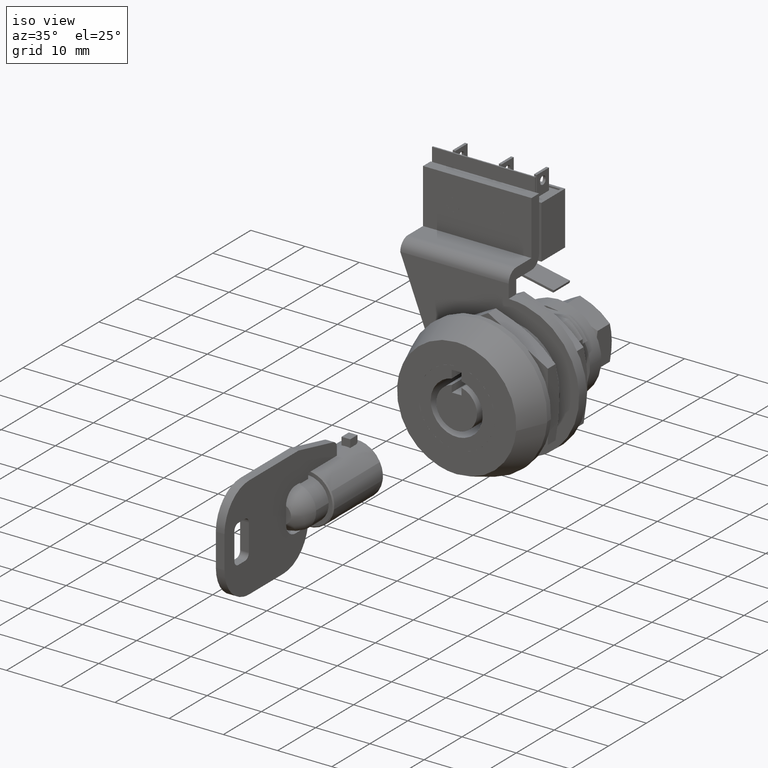
[diagram: clean part render]
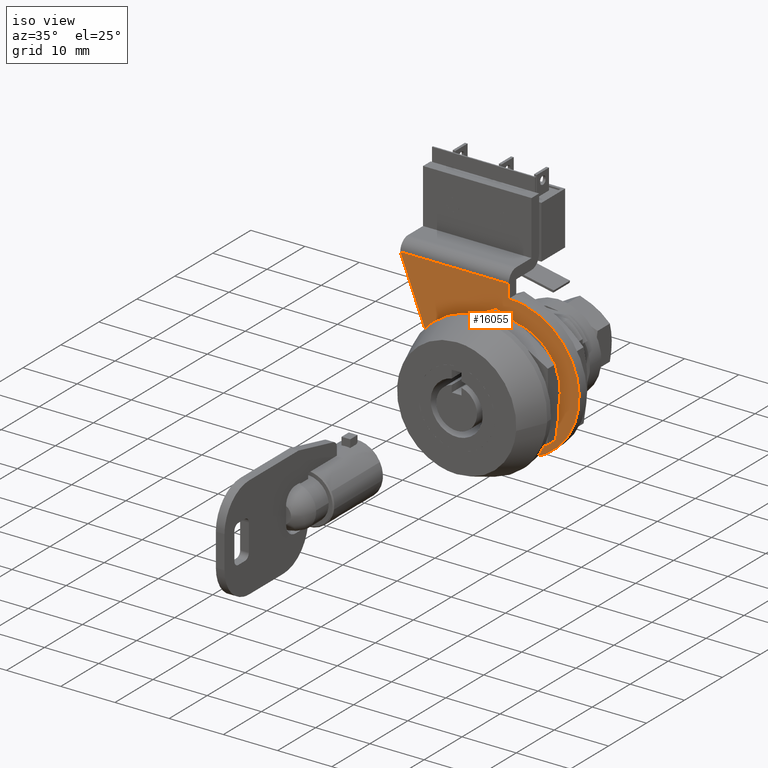
[diagram: same view with one face highlighted and labeled with its STEP entity id]
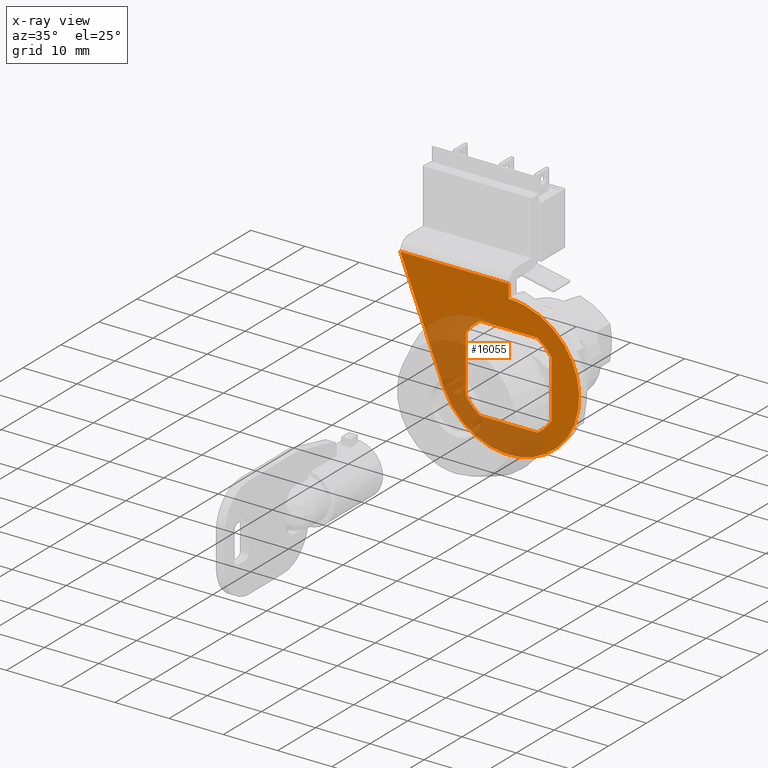
[diagram: x-ray of the same camera — body ghosted, the highlighted face saturated]
A machine part, iso view. The second image highlights one B-rep face of the part: STEP entity #16055.
The next image is the same camera in x-ray: the body ghosted, the highlighted face saturated — about 36% of this face is hidden behind the body in this view.
In plain terms, the highlighted face is a freeform B-spline surface patch.
Its self-contained STEP definition (entity closure, byte-faithful):
#15279=CARTESIAN_POINT('',(13.699997000000240,20.0,15.500000000000000));
#15280=VERTEX_POINT('',#15279);
#15296=CARTESIAN_POINT('',(13.699997000000200,0.0,15.500000000000000));
#15297=VERTEX_POINT('',#15296);
#15298=CARTESIAN_POINT('',(13.699997000000200,0.0,15.500000000000000));
#15299=CARTESIAN_POINT('',(13.699997000000240,20.0,15.500000000000000));
#15300=QUASI_UNIFORM_CURVE('',1,(#15298,#15299),.UNSPECIFIED.,.F.,.U.);
#15301=EDGE_CURVE('',#15297,#15280,#15300,.T.);
#15405=CARTESIAN_POINT('',(13.699997000000240,-5.276367000000000,7.899992999999999));
#15406=VERTEX_POINT('',#15405);
#15427=CARTESIAN_POINT('',(13.699997000000240,-7.899994000000000,5.276371366759939));
#15428=VERTEX_POINT('',#15427);
#15434=CARTESIAN_POINT('',(13.699997000000240,-5.276367000000000,7.899992999999999));
#15435=CARTESIAN_POINT('',(13.699997000000243,-6.849383260797652,6.849385028749488));
#15436=CARTESIAN_POINT('',(13.699997000000240,-7.899994000000000,5.276371366759939));
#15444=(BOUNDED_CURVE()B_SPLINE_CURVE(2,(#15434,#15435,#15436),.UNSPECIFIED.,.F.,.U.)CURVE()GEOMETRIC_REPRESENTATION_ITEM()QUASI_UNIFORM_CURVE()RATIONAL_B_SPLINE_CURVE((1.0,0.980747052830885,1.0))REPRESENTATION_ITEM(''));
#15445=EDGE_CURVE('',#15406,#15428,#15444,.T.);
#15457=CARTESIAN_POINT('',(13.699997000000240,5.276372863999580,7.899992999999999));
#15458=VERTEX_POINT('',#15457);
#15470=CARTESIAN_POINT('',(13.699997000000240,5.276372863999580,7.899992999999999));
#15471=CARTESIAN_POINT('',(13.699997000000240,-5.276367000000000,7.899992999999999));
#15472=QUASI_UNIFORM_CURVE('',1,(#15470,#15471),.UNSPECIFIED.,.F.,.U.);
#15473=EDGE_CURVE('',#15458,#15406,#15472,.T.);
#15494=CARTESIAN_POINT('',(13.699997000000240,7.899993999999911,5.276371366760060));
#15495=VERTEX_POINT('',#15494);
#15515=CARTESIAN_POINT('',(13.699997000000240,7.899993999999909,5.276371366760061));
#15516=CARTESIAN_POINT('',(13.699997000000243,6.849385573130592,6.849384275006776));
#15517=CARTESIAN_POINT('',(13.699997000000240,5.276372863999575,7.899992999999996));
#15525=(BOUNDED_CURVE()B_SPLINE_CURVE(2,(#15515,#15516,#15517),.UNSPECIFIED.,.F.,.U.)CURVE()GEOMETRIC_REPRESENTATION_ITEM()QUASI_UNIFORM_CURVE()RATIONAL_B_SPLINE_CURVE((1.0,0.980747102950351,1.0))REPRESENTATION_ITEM(''));
#15526=EDGE_CURVE('',#15495,#15458,#15525,.T.);
#15538=CARTESIAN_POINT('',(13.699997000000240,7.899999967652269,-5.276362431741590));
#15539=VERTEX_POINT('',#15538);
#15551=CARTESIAN_POINT('',(13.699997000000240,7.899999967652269,-5.276362431741590));
#15552=CARTESIAN_POINT('',(13.699997000000240,7.899993999999911,5.276371366760060));
#15553=QUASI_UNIFORM_CURVE('',1,(#15551,#15552),.UNSPECIFIED.,.F.,.U.);
#15554=EDGE_CURVE('',#15539,#15495,#15553,.T.);
#15575=CARTESIAN_POINT('',(13.699997000000240,5.276347410842080,-7.900010000000001));
#15576=VERTEX_POINT('',#15575);
#15596=CARTESIAN_POINT('',(13.699997000000240,5.276347410842082,-7.900010000000003));
#15597=CARTESIAN_POINT('',(13.699997000000241,6.849381380752912,-6.849394404031687));
#15598=CARTESIAN_POINT('',(13.699997000000240,7.899999967652274,-5.276362431741593));
#15606=(BOUNDED_CURVE()B_SPLINE_CURVE(2,(#15596,#15597,#15598),.UNSPECIFIED.,.F.,.U.)CURVE()GEOMETRIC_REPRESENTATION_ITEM()QUASI_UNIFORM_CURVE()RATIONAL_B_SPLINE_CURVE((1.0,0.980746677922912,1.0))REPRESENTATION_ITEM(''));
#15607=EDGE_CURVE('',#15576,#15539,#15606,.T.);
#15619=CARTESIAN_POINT('',(13.699997000000240,-5.276347410842080,-7.900010000000001));
#15620=VERTEX_POINT('',#15619);
#15632=CARTESIAN_POINT('',(13.699997000000240,-5.276347410842080,-7.900010000000001));
#15633=CARTESIAN_POINT('',(13.699997000000240,5.276347410842080,-7.900010000000001));
#15634=QUASI_UNIFORM_CURVE('',1,(#15632,#15633),.UNSPECIFIED.,.F.,.U.);
#15635=EDGE_CURVE('',#15620,#15576,#15634,.T.);
#15656=CARTESIAN_POINT('',(13.699997000000240,-7.899994000000000,-5.276371366759930));
#15657=VERTEX_POINT('',#15656);
#15677=CARTESIAN_POINT('',(13.699997000000240,-7.899993999999999,-5.276371366759928));
#15678=CARTESIAN_POINT('',(13.699997000000240,-6.849376736108962,-6.849397506148660));
#15679=CARTESIAN_POINT('',(13.699997000000240,-5.276347410842081,-7.900010000000004));
#15687=(BOUNDED_CURVE()B_SPLINE_CURVE(2,(#15677,#15678,#15679),.UNSPECIFIED.,.F.,.U.)CURVE()GEOMETRIC_REPRESENTATION_ITEM()QUASI_UNIFORM_CURVE()RATIONAL_B_SPLINE_CURVE((1.0,0.980746788357526,1.0))REPRESENTATION_ITEM(''));
#15688=EDGE_CURVE('',#15657,#15620,#15687,.T.);
#15705=CARTESIAN_POINT('',(13.699997000000240,-7.899994000000000,5.276371366759939));
#15706=CARTESIAN_POINT('',(13.699997000000240,-7.899994000000000,-5.276371366759930));
#15707=QUASI_UNIFORM_CURVE('',1,(#15705,#15706),.UNSPECIFIED.,.F.,.U.);
#15708=EDGE_CURVE('',#15428,#15657,#15707,.T.);
#15865=CARTESIAN_POINT('',(13.699997000000240,-7.959941E-016,13.0));
#15866=VERTEX_POINT('',#15865);
#15867=CARTESIAN_POINT('',(13.699997000000240,-7.959941E-016,13.0));
#15868=CARTESIAN_POINT('',(13.699997000000200,0.0,15.500000000000000));
#15869=QUASI_UNIFORM_CURVE('',1,(#15867,#15868),.UNSPECIFIED.,.F.,.U.);
#15870=EDGE_CURVE('',#15866,#15297,#15869,.T.);
#15929=CARTESIAN_POINT('',(13.699997000000240,12.111239530242280,-4.724180039022300));
#15930=VERTEX_POINT('',#15929);
#15931=CARTESIAN_POINT('',(13.699997000000240,12.111239530242280,-4.724180039022301));
#15932=CARTESIAN_POINT('',(13.699997000000236,7.939203469413592,-15.419904512715707));
#15933=CARTESIAN_POINT('',(13.699997000000240,-3.190323775625334,-12.602453499484920));
#15934=CARTESIAN_POINT('',(13.699997000000236,-14.319851020664245,-9.785002486254140));
#15935=CARTESIAN_POINT('',(13.699997000000240,-12.900230530756110,1.607498756872923));
#15936=CARTESIAN_POINT('',(13.699997000000236,-11.480610040847958,13.0));
#15937=CARTESIAN_POINT('',(13.699997000000240,0.0,13.0));
#15945=(BOUNDED_CURVE()B_SPLINE_CURVE(2,(#15931,#15932,#15933,#15934,#15935,#15936,#15937),.UNSPECIFIED.,.F.,.U.)B_SPLINE_CURVE_WITH_KNOTS((3,2,2,3),(0.0,0.333333333333333,0.666666666666667,1.0),.UNSPECIFIED.)CURVE()GEOMETRIC_REPRESENTATION_ITEM()RATIONAL_B_SPLINE_CURVE((1.0,0.749551115844906,1.0,0.749551115844906,1.0,0.749551115844906,1.0))REPRESENTATION_ITEM(''));
#15946=EDGE_CURVE('',#15930,#15866,#15945,.T.);
#15967=CARTESIAN_POINT('',(13.699997000000240,20.0,15.500000000000000));
#15968=CARTESIAN_POINT('',(13.699997000000240,12.111239530242280,-4.724180039022300));
#15969=QUASI_UNIFORM_CURVE('',1,(#15967,#15968),.UNSPECIFIED.,.F.,.U.);
#15970=EDGE_CURVE('',#15280,#15930,#15969,.T.);
#16034=CARTESIAN_POINT('',(13.699997000000200,21.648210677662380,16.923017905448070));
#16035=CARTESIAN_POINT('',(13.699997000000200,-14.645423606154679,16.923017905448070));
#16036=CARTESIAN_POINT('',(13.699997000000200,21.648210677662380,-14.411866727126981));
#16037=CARTESIAN_POINT('',(13.699997000000200,-14.645423606154679,-14.411866727126981));
#16038=B_SPLINE_SURFACE_WITH_KNOTS('',1,1,((#16034,#16036),(#16035,#16037)),.UNSPECIFIED.,.F.,.F.,.U.,(2,2),(2,2),(0.0,36.293634283817063),(0.0,31.334884632575051),.UNSPECIFIED.);
#16039=ORIENTED_EDGE('',*,*,#15870,.T.);
#16040=ORIENTED_EDGE('',*,*,#15301,.T.);
#16041=ORIENTED_EDGE('',*,*,#15970,.T.);
#16042=ORIENTED_EDGE('',*,*,#15946,.T.);
#16043=EDGE_LOOP('',(#16039,#16040,#16041,#16042));
#16044=FACE_OUTER_BOUND('',#16043,.T.);
#16045=ORIENTED_EDGE('',*,*,#15445,.T.);
#16046=ORIENTED_EDGE('',*,*,#15708,.T.);
#16047=ORIENTED_EDGE('',*,*,#15688,.T.);
#16048=ORIENTED_EDGE('',*,*,#15635,.T.);
#16049=ORIENTED_EDGE('',*,*,#15607,.T.);
#16050=ORIENTED_EDGE('',*,*,#15554,.T.);
#16051=ORIENTED_EDGE('',*,*,#15526,.T.);
#16052=ORIENTED_EDGE('',*,*,#15473,.T.);
#16053=EDGE_LOOP('',(#16045,#16046,#16047,#16048,#16049,#16050,#16051,#16052));
#16054=FACE_BOUND('',#16053,.T.);
#16055=ADVANCED_FACE('',(#16044,#16054),#16038,.F.);